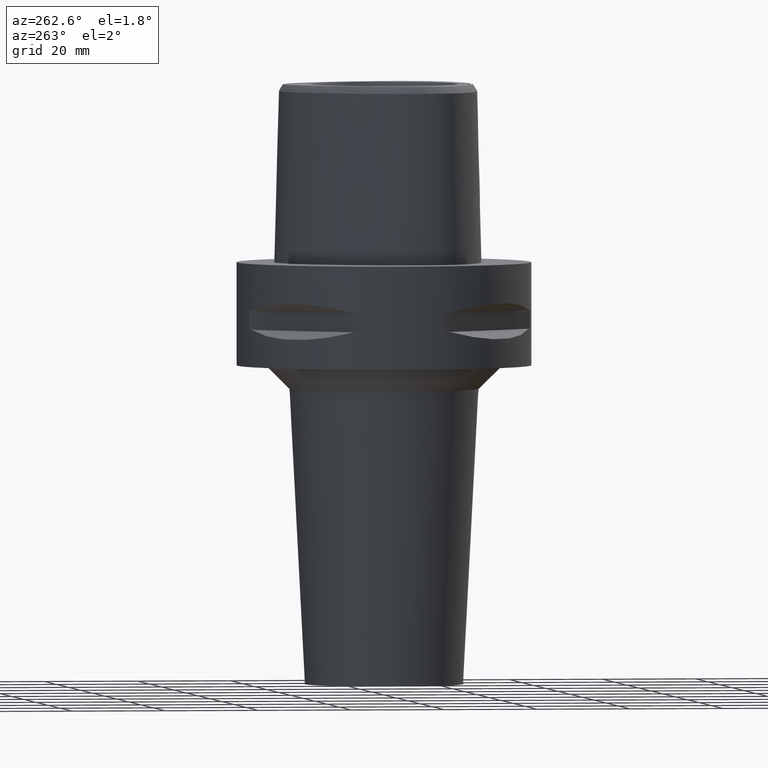
[diagram: clean part render]
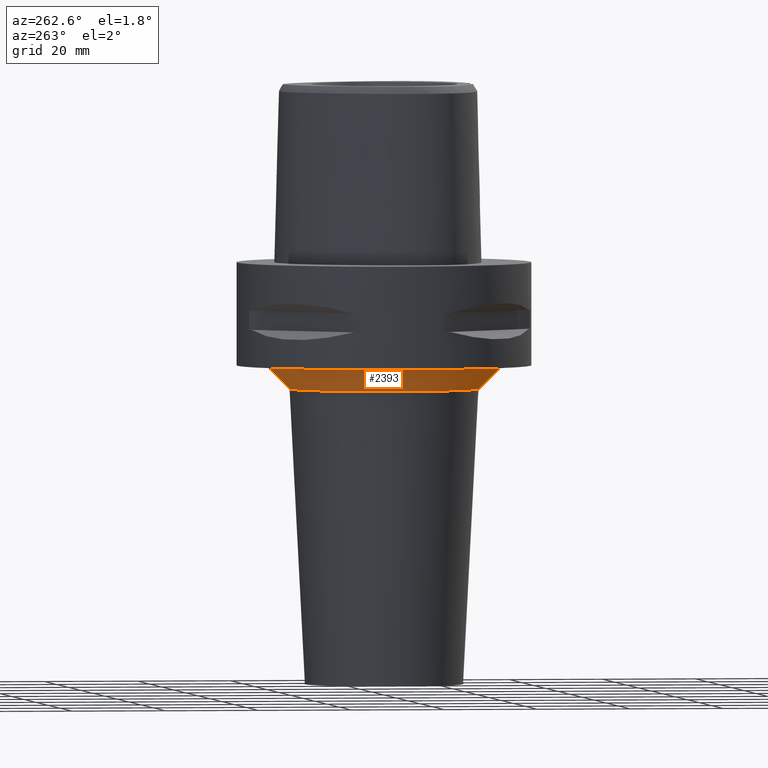
[diagram: same view with one face highlighted and labeled with its STEP entity id]
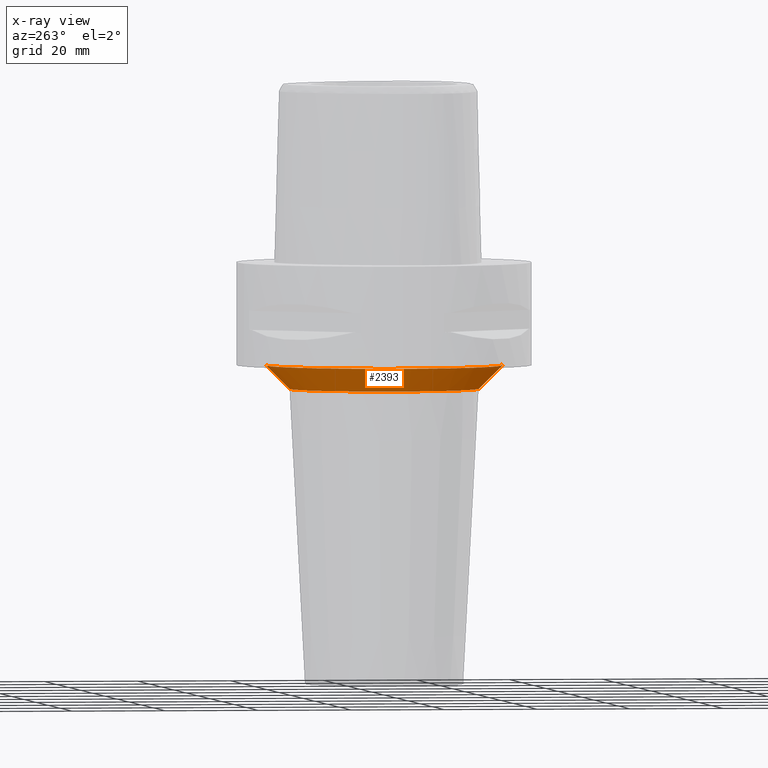
[diagram: x-ray of the same camera — body ghosted, the highlighted face saturated]
A machine part, auxiliary view. The second image highlights one B-rep face of the part: STEP entity #2393.
The next image is the same camera in x-ray: the body ghosted, the highlighted face saturated — about 0% of this face is hidden behind the body in this view.
In plain terms, the highlighted conical surface has half-angle 45 deg.
Its self-contained STEP definition (entity closure, byte-faithful):
#524=CARTESIAN_POINT('',(0.E0,0.E0,-2.2E1));
#525=DIRECTION('',(0.E0,0.E0,-1.E0));
#526=DIRECTION('',(0.E0,-1.E0,0.E0));
#527=AXIS2_PLACEMENT_3D('',#524,#525,#526);
#540=DIRECTION('',(0.E0,7.071067811863E-1,-7.071067811868E-1));
#541=VECTOR('',#540,7.071067811864E0);
#542=CARTESIAN_POINT('',(0.E0,-2.530169009483E1,-2.2E1));
#543=LINE('',#542,#541);
#547=CARTESIAN_POINT('',(0.E0,0.E0,-2.7E1));
#548=DIRECTION('',(0.E0,0.E0,-1.E0));
#549=DIRECTION('',(0.E0,-1.E0,0.E0));
#550=AXIS2_PLACEMENT_3D('',#547,#548,#549);
#555=DIRECTION('',(0.E0,-7.071067811863E-1,-7.071067811868E-1));
#556=VECTOR('',#555,7.071067811864E0);
#557=CARTESIAN_POINT('',(0.E0,2.530169009483E1,-2.2E1));
#558=LINE('',#557,#556);
#1500=CARTESIAN_POINT('',(0.E0,-2.530169009483E1,-2.2E1));
#1501=CARTESIAN_POINT('',(0.E0,2.530169009483E1,-2.2E1));
#1502=VERTEX_POINT('',#1500);
#1503=VERTEX_POINT('',#1501);
#1504=CARTESIAN_POINT('',(0.E0,2.030169009483E1,-2.7E1));
#1505=VERTEX_POINT('',#1504);
#1506=CARTESIAN_POINT('',(0.E0,-2.030169009483E1,-2.7E1));
#1507=VERTEX_POINT('',#1506);
#2379=CARTESIAN_POINT('',(0.E0,0.E0,-2.45E1));
#2380=DIRECTION('',(0.E0,0.E0,1.E0));
#2381=DIRECTION('',(0.E0,1.E0,0.E0));
#2382=AXIS2_PLACEMENT_3D('',#2379,#2380,#2381);
#2383=CONICAL_SURFACE('',#2382,2.280169009483E1,4.5E1);
#2385=ORIENTED_EDGE('',*,*,#2384,.F.);
#2386=ORIENTED_EDGE('',*,*,#2372,.F.);
#2388=ORIENTED_EDGE('',*,*,#2387,.T.);
#2390=ORIENTED_EDGE('',*,*,#2389,.T.);
#2391=EDGE_LOOP('',(#2385,#2386,#2388,#2390));
#2392=FACE_OUTER_BOUND('',#2391,.F.);
#528=CIRCLE('',#527,2.530169009483E1);
#551=CIRCLE('',#550,2.030169009483E1);
#2372=EDGE_CURVE('',#1502,#1503,#528,.T.);
#2384=EDGE_CURVE('',#1503,#1505,#558,.T.);
#2387=EDGE_CURVE('',#1502,#1507,#543,.T.);
#2389=EDGE_CURVE('',#1507,#1505,#551,.T.);
#2393=ADVANCED_FACE('',(#2392),#2383,.T.);